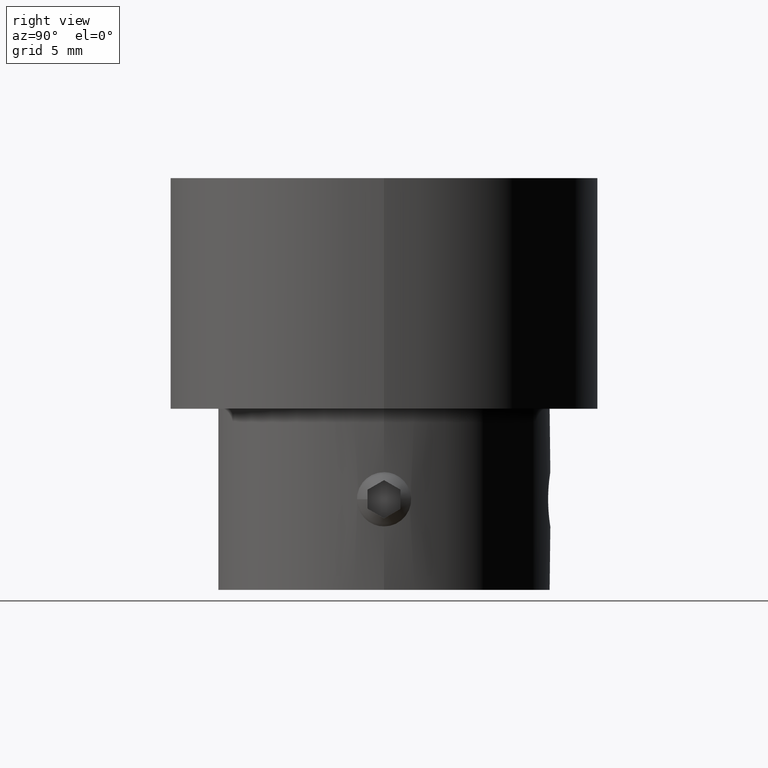
[diagram: clean part render]
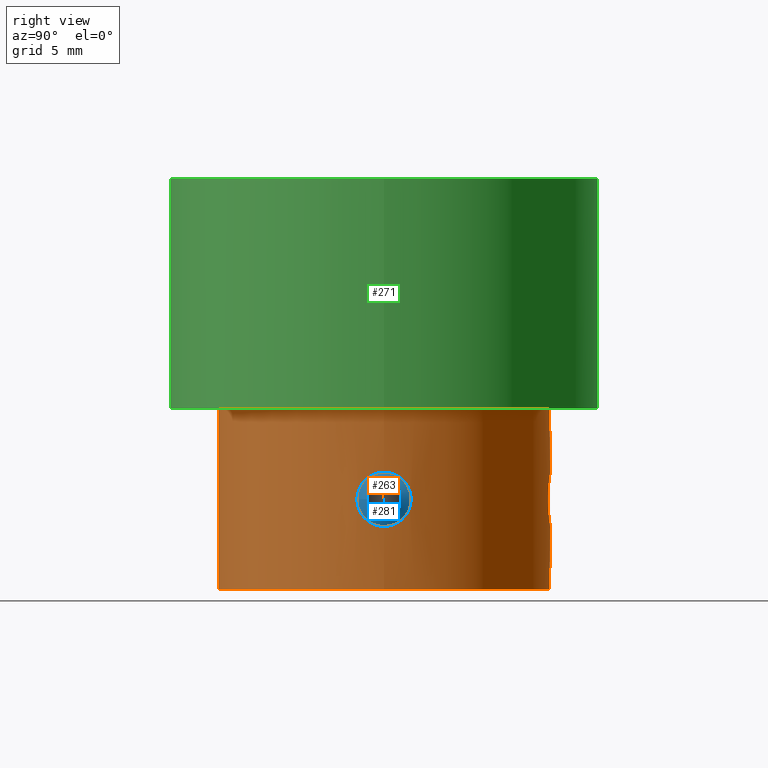
[diagram: same view with three faces highlighted in distinct colors, each labeled with its STEP entity id]
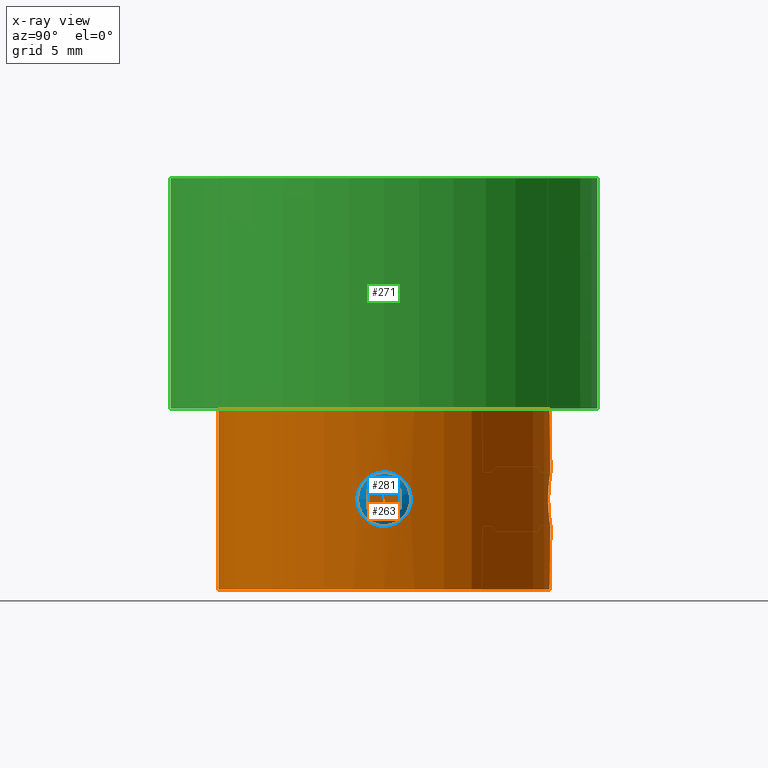
[diagram: x-ray of the same camera — body ghosted, the three highlighted faces saturated]
A machine part, right view with three faces highlighted in distinct colors.
The next image is the same camera in x-ray (body ghosted, the three faces saturated) — at least one of them is partly hidden behind the body in this view.
Their STEP definitions:

[orange] entity #263 — the highlighted cylindrical surface (bore or boss wall) has radius 10.1 mm, axis along (-0, 0, -1).
#263 = ADVANCED_FACE( '', ( #304, #305, #306, #307 ), #308, .T. );
#304 = FACE_BOUND( '', #396, .T. );
#305 = FACE_OUTER_BOUND( '', #397, .T. );
#306 = FACE_BOUND( '', #398, .T. );
#307 = FACE_OUTER_BOUND( '', #399, .T. );
#308 = CYLINDRICAL_SURFACE( '', #400, 10.1000000000000 );
#396 = EDGE_LOOP( '', ( #488 ) );
#397 = EDGE_LOOP( '', ( #489 ) );
#398 = EDGE_LOOP( '', ( #490 ) );
#399 = EDGE_LOOP( '', ( #491 ) );
#400 = AXIS2_PLACEMENT_3D( '', #492, #493, #494 );
#488 = ORIENTED_EDGE( '', *, *, #704, .F. );
#489 = ORIENTED_EDGE( '', *, *, #705, .T. );
#490 = ORIENTED_EDGE( '', *, *, #706, .F. );
#491 = ORIENTED_EDGE( '', *, *, #707, .T. );
#492 = CARTESIAN_POINT( '', ( 0.000000000000000, 0.000000000000000, -25.0000000000000 ) );
#493 = DIRECTION( '', ( -0.000000000000000, 0.000000000000000, -1.00000000000000 ) );
#494 = DIRECTION( '', ( 1.00000000000000, 0.000000000000000, 0.000000000000000 ) );
#704 = EDGE_CURVE( '', #762, #762, #763, .T. );
#705 = EDGE_CURVE( '', #764, #764, #765, .T. );
#706 = EDGE_CURVE( '', #766, #766, #767, .T. );
#707 = EDGE_CURVE( '', #768, #768, #769, .F. );
#762 = VERTEX_POINT( '', #862 );
#763 = B_SPLINE_CURVE_WITH_KNOTS( '', 3, ( #863, #864, #865, #866, #867, #868, #869, #870, #871, #872, #873, #874, #875, #876, #877, #878, #879, #880, #881, #882, #883, #884, #885, #886, #887, #888, #889, #890, #891, #892, #893, #894, #895, #896, #897, #898, #899, #900, #901, #902, #903, #904, #905, #906, #907, #908, #909, #910, #911, #912 ), .UNSPECIFIED., .T., .F., ( 2, 2, 2, 2, 2, 2, 2, 2, 2, 2, 2, 2, 2, 2, 2, 2, 2, 2, 2, 2, 2, 2, 2, 2, 2, 2, 2 ), ( -0.000645859018076156, 0.000000000000000, 0.000322929509038092, 0.000645859018076185, 0.000968788527114277, 0.00129171803615237, 0.00193757705422855, 0.00258343607230473, 0.00290636558134281, 0.00322929509038089, 0.00387515410845705, 0.00419808361749513, 0.00452101312653321, 0.00484394263557129, 0.00516687214460937, 0.00581273116268553, 0.00645859018076168, 0.00678151968979976, 0.00710444919883784, 0.00775030821691399, 0.00807323772595208, 0.00839616723499016, 0.00871909674402824, 0.00904202625306633, 0.00968788527114249, 0.0103337442892186, 0.0106566737982567 ), .UNSPECIFIED. );
#764 = VERTEX_POINT( '', #913 );
#765 = CIRCLE( '', #914, 10.1000000000000 );
#766 = VERTEX_POINT( '', #915 );
#767 = B_SPLINE_CURVE_WITH_KNOTS( '', 3, ( #916, #917, #918, #919, #920, #921, #922, #923, #924, #925, #926, #927, #928, #929, #930, #931, #932, #933, #934, #935, #936, #937, #938, #939, #940, #941, #942, #943, #944, #945, #946, #947, #948, #949, #950, #951, #952, #953, #954, #955, #956, #957, #958, #959, #960, #961, #962, #963, #964, #965 ), .UNSPECIFIED., .T., .F., ( 2, 2, 2, 2, 2, 2, 2, 2, 2, 2, 2, 2, 2, 2, 2, 2, 2, 2, 2, 2, 2, 2, 2, 2, 2, 2, 2 ), ( -0.000645859018076163, 0.000000000000000, 0.000322929509038091, 0.000645859018076182, 0.000968788527114273, 0.00129171803615236, 0.00193757705422854, 0.00258343607230472, 0.00290636558134280, 0.00322929509038088, 0.00387515410845704, 0.00419808361749511, 0.00452101312653319, 0.00484394263557127, 0.00516687214460935, 0.00581273116268550, 0.00645859018076165, 0.00678151968979973, 0.00710444919883781, 0.00775030821691397, 0.00807323772595206, 0.00839616723499015, 0.00871909674402823, 0.00904202625306632, 0.00968788527114248, 0.0103337442892186, 0.0106566737982567 ), .UNSPECIFIED. );
#768 = VERTEX_POINT( '', #966 );
#769 = CIRCLE( '', #967, 10.1000000000000 );
#862 = CARTESIAN_POINT( '', ( -0.197036897841014, 10.0980778597162, -17.8618069524963 ) );
#863 = CARTESIAN_POINT( '', ( -0.413835068599879, 10.0938476250500, -17.8878827798165 ) );
#864 = CARTESIAN_POINT( '', ( -0.0886378124615763, 10.1001929770492, -17.8487690388362 ) );
#865 = CARTESIAN_POINT( '', ( 0.0192339311944848, 10.1005524229589, -17.8466017716579 ) );
#866 = CARTESIAN_POINT( '', ( 0.233965220237952, 10.0978606382129, -17.8631261742843 ) );
#867 = CARTESIAN_POINT( '', ( 0.341997659381878, 10.0947465821039, -17.8822103931210 ) );
#868 = CARTESIAN_POINT( '', ( 0.550321856152164, 10.0855350284733, -17.9407208505885 ) );
#869 = CARTESIAN_POINT( '', ( 0.650466696647838, 10.0794937828834, -17.9797940305924 ) );
#870 = CARTESIAN_POINT( '', ( 0.842831018452398, 10.0652341113840, -18.0774076524861 ) );
#871 = CARTESIAN_POINT( '', ( 0.935255996854193, 10.0569630318336, -18.1364232056220 ) );
#872 = CARTESIAN_POINT( '', ( 1.18867549347761, 10.0312455549891, -18.3356407828866 ) );
#873 = CARTESIAN_POINT( '', ( 1.33246122812960, 10.0122860817558, -18.5034304259861 ) );
#874 = CARTESIAN_POINT( '', ( 1.54313626097009, 9.98198657519981, -18.8776381113869 ) );
#875 = CARTESIAN_POINT( '', ( 1.61222308290267, 9.97052775049790, -19.0880374650928 ) );
#876 = CARTESIAN_POINT( '', ( 1.65101553447083, 9.96415171643122, -19.4090780293942 ) );
#877 = CARTESIAN_POINT( '', ( 1.65341830753258, 9.96374822140631, -19.5191382265471 ) );
#878 = CARTESIAN_POINT( '', ( 1.63682396980571, 9.96648774700148, -19.7344475704048 ) );
#879 = CARTESIAN_POINT( '', ( 1.61812751715181, 9.96958060271725, -19.8404352440997 ) );
#880 = CARTESIAN_POINT( '', ( 1.53053864744746, 9.98353382685859, -20.1533626232239 ) );
#881 = CARTESIAN_POINT( '', ( 1.43180372573795, 9.99891251680043, -20.3483187490491 ) );
#882 = CARTESIAN_POINT( '', ( 1.23049529181897, 10.0249917552948, -20.6046189338716 ) );
#883 = CARTESIAN_POINT( '', ( 1.15609056409460, 10.0339508820240, -20.6821527154976 ) );
#884 = CARTESIAN_POINT( '', ( 0.993122200324899, 10.0513891572499, -20.8220206996748 ) );
#885 = CARTESIAN_POINT( '', ( 0.903444976226864, 10.0599546800184, -20.8848947777687 ) );
#886 = CARTESIAN_POINT( '', ( 0.715361753056328, 10.0750761064797, -20.9907729313429 ) );
#887 = CARTESIAN_POINT( '', ( 0.617063174994442, 10.0816557761441, -21.0340759623899 ) );
#888 = CARTESIAN_POINT( '', ( 0.411902014975233, 10.0921200389538, -21.1014033690411 ) );
#889 = CARTESIAN_POINT( '', ( 0.304591375313770, 10.0959727742497, -21.1252164095303 ) );
#890 = CARTESIAN_POINT( '', ( -0.0162513344940196, 10.1022524493972, -21.1639269902901 ) );
#891 = CARTESIAN_POINT( '', ( -0.237474993378689, 10.0993372389121, -21.1469337287937 ) );
#892 = CARTESIAN_POINT( '', ( -0.651835611387458, 10.0810771931121, -21.0309785809232 ) );
#893 = CARTESIAN_POINT( '', ( -0.849038516058288, 10.0656890116373, -20.9310623563583 ) );
#894 = CARTESIAN_POINT( '', ( -1.10300961944929, 10.0399507070299, -20.7318466815259 ) );
#895 = CARTESIAN_POINT( '', ( -1.18224520243821, 10.0308163388895, -20.6560110556135 ) );
#896 = CARTESIAN_POINT( '', ( -1.32229639789662, 10.0133167521721, -20.4927726403857 ) );
#897 = CARTESIAN_POINT( '', ( -1.38396638337660, 10.0048749592815, -20.4049040554422 ) );
#898 = CARTESIAN_POINT( '', ( -1.54348829138388, 9.98194307232116, -20.1220941197680 ) );
#899 = CARTESIAN_POINT( '', ( -1.61184931508604, 9.97058906434993, -19.9146492646963 ) );
#900 = CARTESIAN_POINT( '', ( -1.65113597428166, 9.96413198028822, -19.5901279715021 ) );
#901 = CARTESIAN_POINT( '', ( -1.65341792176747, 9.96374817255838, -19.4823450888941 ) );
#902 = CARTESIAN_POINT( '', ( -1.63708962613839, 9.96644400105536, -19.2675347856171 ) );
#903 = CARTESIAN_POINT( '', ( -1.61806174838215, 9.96959108364420, -19.1593286638432 ) );
#904 = CARTESIAN_POINT( '', ( -1.55979821926214, 9.97887266738293, -18.9511737105030 ) );
#905 = CARTESIAN_POINT( '', ( -1.52083435235048, 9.98496336966717, -18.8509842745074 ) );
#906 = CARTESIAN_POINT( '', ( -1.42328460828723, 9.99933455509400, -18.6583234213555 ) );
#907 = CARTESIAN_POINT( '', ( -1.36441042950201, 10.0076397406180, -18.5659664552719 ) );
#908 = CARTESIAN_POINT( '', ( -1.16552208469462, 10.0334158820717, -18.3124831785049 ) );
#909 = CARTESIAN_POINT( '', ( -0.997839996239105, 10.0523393757375, -18.1684832649214 ) );
#910 = CARTESIAN_POINT( '', ( -0.623756233136248, 10.0824669473657, -17.9574211088205 ) );
#911 = CARTESIAN_POINT( '', ( -0.413835068599879, 10.0938476250500, -17.8878827798165 ) );
#912 = CARTESIAN_POINT( '', ( -0.0886378124615763, 10.1001929770492, -17.8487690388362 ) );
#913 = CARTESIAN_POINT( '', ( 10.1000000000000, 0.000000000000000, -25.0000000000000 ) );
#914 = AXIS2_PLACEMENT_3D( '', #1250, #1251, #1252 );
#915 = CARTESIAN_POINT( '', ( 10.0980778597162, 0.197036897841014, -17.8618069524963 ) );
#916 = CARTESIAN_POINT( '', ( 10.0938476250500, 0.413835068599882, -17.8878827798165 ) );
#917 = CARTESIAN_POINT( '', ( 10.1001929770492, 0.0886378124615769, -17.8487690388362 ) );
#918 = CARTESIAN_POINT( '', ( 10.1005524229589, -0.0192339311944841, -17.8466017716579 ) );
#919 = CARTESIAN_POINT( '', ( 10.0978606382129, -0.233965220237951, -17.8631261742843 ) );
#920 = CARTESIAN_POINT( '', ( 10.0947465821039, -0.341997659381876, -17.8822103931210 ) );
#921 = CARTESIAN_POINT( '', ( 10.0855350284733, -0.550321856152162, -17.9407208505885 ) );
#922 = CARTESIAN_POINT( '', ( 10.0794937828834, -0.650466696647837, -17.9797940305923 ) );
#923 = CARTESIAN_POINT( '', ( 10.0652341113840, -0.842831018452397, -18.0774076524861 ) );
#924 = CARTESIAN_POINT( '', ( 10.0569630318337, -0.935255996854192, -18.1364232056220 ) );
#925 = CARTESIAN_POINT( '', ( 10.0312455549890, -1.18867549347761, -18.3356407828866 ) );
#926 = CARTESIAN_POINT( '', ( 10.0122860817558, -1.33246122812961, -18.5034304259861 ) );
#927 = CARTESIAN_POINT( '', ( 9.98198657519981, -1.54313626097009, -18.8776381113869 ) );
#928 = CARTESIAN_POINT( '', ( 9.97052775049789, -1.61222308290267, -19.0880374650928 ) );
#929 = CARTESIAN_POINT( '', ( 9.96415171643122, -1.65101553447083, -19.4090780293942 ) );
#930 = CARTESIAN_POINT( '', ( 9.96374822140631, -1.65341830753258, -19.5191382265471 ) );
#931 = CARTESIAN_POINT( '', ( 9.96648774700148, -1.63682396980571, -19.7344475704048 ) );
#932 = CARTESIAN_POINT( '', ( 9.96958060271725, -1.61812751715181, -19.8404352440997 ) );
#933 = CARTESIAN_POINT( '', ( 9.98353382685859, -1.53053864744745, -20.1533626232239 ) );
#934 = CARTESIAN_POINT( '', ( 9.99891251680044, -1.43180372573795, -20.3483187490491 ) );
#935 = CARTESIAN_POINT( '', ( 10.0249917552948, -1.23049529181897, -20.6046189338716 ) );
#936 = CARTESIAN_POINT( '', ( 10.0339508820240, -1.15609056409459, -20.6821527154976 ) );
#937 = CARTESIAN_POINT( '', ( 10.0513891572499, -0.993122200324897, -20.8220206996748 ) );
#938 = CARTESIAN_POINT( '', ( 10.0599546800184, -0.903444976226863, -20.8848947777687 ) );
#939 = CARTESIAN_POINT( '', ( 10.0750761064797, -0.715361753056326, -20.9907729313429 ) );
#940 = CARTESIAN_POINT( '', ( 10.0816557761441, -0.617063174994440, -21.0340759623899 ) );
#941 = CARTESIAN_POINT( '', ( 10.0921200389538, -0.411902014975231, -21.1014033690411 ) );
#942 = CARTESIAN_POINT( '', ( 10.0959727742497, -0.304591375313768, -21.1252164095303 ) );
#943 = CARTESIAN_POINT( '', ( 10.1022524493972, 0.0162513344940226, -21.1639269902901 ) );
#944 = CARTESIAN_POINT( '', ( 10.0993372389121, 0.237474993378691, -21.1469337287937 ) );
#945 = CARTESIAN_POINT( '', ( 10.0810771931121, 0.651835611387459, -21.0309785809232 ) );
#946 = CARTESIAN_POINT( '', ( 10.0656890116374, 0.849038516058293, -20.9310623563583 ) );
#947 = CARTESIAN_POINT( '', ( 10.0399507070298, 1.10300961944930, -20.7318466815259 ) );
#948 = CARTESIAN_POINT( '', ( 10.0308163388895, 1.18224520243821, -20.6560110556135 ) );
#949 = CARTESIAN_POINT( '', ( 10.0133167521721, 1.32229639789663, -20.4927726403857 ) );
#950 = CARTESIAN_POINT( '', ( 10.0048749592815, 1.38396638337660, -20.4049040554422 ) );
#951 = CARTESIAN_POINT( '', ( 9.98194307232116, 1.54348829138388, -20.1220941197680 ) );
#952 = CARTESIAN_POINT( '', ( 9.97058906434994, 1.61184931508604, -19.9146492646963 ) );
#953 = CARTESIAN_POINT( '', ( 9.96413198028822, 1.65113597428166, -19.5901279715021 ) );
#954 = CARTESIAN_POINT( '', ( 9.96374817255838, 1.65341792176747, -19.4823450888941 ) );
#955 = CARTESIAN_POINT( '', ( 9.96644400105536, 1.63708962613839, -19.2675347856171 ) );
#956 = CARTESIAN_POINT( '', ( 9.96959108364421, 1.61806174838215, -19.1593286638432 ) );
#957 = CARTESIAN_POINT( '', ( 9.97887266738294, 1.55979821926214, -18.9511737105030 ) );
#958 = CARTESIAN_POINT( '', ( 9.98496336966717, 1.52083435235048, -18.8509842745074 ) );
#959 = CARTESIAN_POINT( '', ( 9.99933455509401, 1.42328460828723, -18.6583234213555 ) );
#960 = CARTESIAN_POINT( '', ( 10.0076397406180, 1.36441042950201, -18.5659664552719 ) );
#961 = CARTESIAN_POINT( '', ( 10.0334158820717, 1.16552208469462, -18.3124831785049 ) );
#962 = CARTESIAN_POINT( '', ( 10.0523393757375, 0.997839996239105, -18.1684832649214 ) );
#963 = CARTESIAN_POINT( '', ( 10.0824669473657, 0.623756233136249, -17.9574211088205 ) );
#964 = CARTESIAN_POINT( '', ( 10.0938476250500, 0.413835068599882, -17.8878827798165 ) );
#965 = CARTESIAN_POINT( '', ( 10.1001929770492, 0.0886378124615769, -17.8487690388362 ) );
#966 = CARTESIAN_POINT( '', ( 10.1000000000000, 0.000000000000000, -14.0000000000000 ) );
#967 = AXIS2_PLACEMENT_3D( '', #1253, #1254, #1255 );
#1250 = CARTESIAN_POINT( '', ( 0.000000000000000, 0.000000000000000, -25.0000000000000 ) );
#1251 = DIRECTION( '', ( 0.000000000000000, 0.000000000000000, 1.00000000000000 ) );
#1252 = DIRECTION( '', ( 1.00000000000000, 0.000000000000000, -0.000000000000000 ) );
#1253 = CARTESIAN_POINT( '', ( 0.000000000000000, 0.000000000000000, -14.0000000000000 ) );
#1254 = DIRECTION( '', ( 0.000000000000000, 0.000000000000000, 1.00000000000000 ) );
#1255 = DIRECTION( '', ( 1.00000000000000, 0.000000000000000, -0.000000000000000 ) );

[blue] entity #281 — the highlighted conical surface has half-angle 63.435 deg.
#281 = ADVANCED_FACE( '', ( #344, #345 ), #346, .T. );
#344 = FACE_OUTER_BOUND( '', #436, .T. );
#345 = FACE_BOUND( '', #437, .T. );
#346 = CONICAL_SURFACE( '', #438, 2.00000000000000, 1.10714871779409 );
#436 = EDGE_LOOP( '', ( #552 ) );
#437 = EDGE_LOOP( '', ( #553, #554, #555, #556, #557, #558 ) );
#438 = AXIS2_PLACEMENT_3D( '', #559, #560, #561 );
#552 = ORIENTED_EDGE( '', *, *, #718, .F. );
#553 = ORIENTED_EDGE( '', *, *, #719, .T. );
#554 = ORIENTED_EDGE( '', *, *, #720, .T. );
#555 = ORIENTED_EDGE( '', *, *, #721, .T. );
#556 = ORIENTED_EDGE( '', *, *, #722, .T. );
#557 = ORIENTED_EDGE( '', *, *, #723, .T. );
#558 = ORIENTED_EDGE( '', *, *, #724, .T. );
#559 = CARTESIAN_POINT( '', ( 9.46205955850783, 0.000000000000000, -19.5000000000000 ) );
#560 = DIRECTION( '', ( -1.00000000000000, -0.000000000000000, -0.000000000000000 ) );
#561 = DIRECTION( '', ( 0.000000000000000, -1.00000000000000, 0.000000000000000 ) );
#718 = EDGE_CURVE( '', #790, #790, #791, .T. );
#719 = EDGE_CURVE( '', #792, #793, #794, .T. );
#720 = EDGE_CURVE( '', #793, #795, #796, .T. );
#721 = EDGE_CURVE( '', #795, #797, #798, .T. );
#722 = EDGE_CURVE( '', #797, #799, #800, .F. );
#723 = EDGE_CURVE( '', #799, #801, #802, .T. );
#724 = EDGE_CURVE( '', #801, #792, #803, .T. );
#790 = VERTEX_POINT( '', #1094 );
#791 = CIRCLE( '', #1095, 2.00000000000000 );
#792 = VERTEX_POINT( '', #1096 );
#793 = VERTEX_POINT( '', #1097 );
#794 = B_SPLINE_CURVE_WITH_KNOTS( '', 3, ( #1098, #1099, #1100, #1101, #1102, #1103 ), .UNSPECIFIED., .F., .F., ( 4, 2, 4 ), ( 0.00103458309332885, 0.00161823594737898, 0.00220188880142910 ), .UNSPECIFIED. );
#795 = VERTEX_POINT( '', #1104 );
#796 = B_SPLINE_CURVE_WITH_KNOTS( '', 3, ( #1105, #1106, #1107, #1108, #1109, #1110 ), .UNSPECIFIED., .F., .F., ( 4, 2, 4 ), ( 2.34956865817659E-007, 0.000579233426840285, 0.00115823189681475 ), .UNSPECIFIED. );
#797 = VERTEX_POINT( '', #1111 );
#798 = B_SPLINE_CURVE_WITH_KNOTS( '', 3, ( #1112, #1113, #1114, #1115, #1116, #1117 ), .UNSPECIFIED., .F., .F., ( 4, 2, 4 ), ( 2.34956865817690E-007, 0.000579233426840286, 0.00115823189681475 ), .UNSPECIFIED. );
#799 = VERTEX_POINT( '', #1118 );
#800 = B_SPLINE_CURVE_WITH_KNOTS( '', 3, ( #1119, #1120, #1121, #1122, #1123, #1124 ), .UNSPECIFIED., .F., .F., ( 4, 2, 4 ), ( 0.00103458309332885, 0.00161823594737898, 0.00220188880142910 ), .UNSPECIFIED. );
#801 = VERTEX_POINT( '', #1125 );
#802 = B_SPLINE_CURVE_WITH_KNOTS( '', 3, ( #1126, #1127, #1128, #1129, #1130, #1131 ), .UNSPECIFIED., .F., .F., ( 4, 2, 4 ), ( 2.34956865817659E-007, 0.000579233426840285, 0.00115823189681475 ), .UNSPECIFIED. );
#803 = B_SPLINE_CURVE_WITH_KNOTS( '', 3, ( #1132, #1133, #1134, #1135, #1136, #1137 ), .UNSPECIFIED., .F., .F., ( 4, 2, 4 ), ( 2.34956865817718E-007, 0.000579233426840285, 0.00115823189681475 ), .UNSPECIFIED. );
#1094 = CARTESIAN_POINT( '', ( 9.46205955850783, -2.00000000000000, -19.5000000000000 ) );
#1095 = AXIS2_PLACEMENT_3D( '', #1280, #1281, #1282 );
#1096 = CARTESIAN_POINT( '', ( 9.88470928931821, -1.00000000000000, -20.0773502691896 ) );
#1097 = CARTESIAN_POINT( '', ( 9.88470928931821, -1.00000000000000, -18.9226497308104 ) );
#1098 = CARTESIAN_POINT( '', ( 9.88470928931821, -1.00000000000000, -20.0773502691896 ) );
#1099 = CARTESIAN_POINT( '', ( 9.93205678895494, -1.00000000000000, -19.8879602706427 ) );
#1100 = CARTESIAN_POINT( '', ( 9.96203361477331, -1.00000000000000, -19.6938974989258 ) );
#1101 = CARTESIAN_POINT( '', ( 9.96208546638729, -1.00000000000000, -19.3066380760690 ) );
#1102 = CARTESIAN_POINT( '', ( 9.93166433104529, -1.00000000000000, -19.1104698977178 ) );
#1103 = CARTESIAN_POINT( '', ( 9.88470928931842, -1.00000000000000, -18.9226497308103 ) );
#1104 = CARTESIAN_POINT( '', ( 9.88470928931821, 0.000000000000000, -18.3452994616207 ) );
#1105 = CARTESIAN_POINT( '', ( 9.88470928931821, -0.999999999999999, -18.9226497308104 ) );
#1106 = CARTESIAN_POINT( '', ( 9.93213444125038, -0.835714454593607, -18.8277994269460 ) );
#1107 = CARTESIAN_POINT( '', ( 9.96178597336774, -0.670138468625594, -18.7322040868761 ) );
#1108 = CARTESIAN_POINT( '', ( 9.96232920907831, -0.334720282664987, -18.5385503069206 ) );
#1109 = CARTESIAN_POINT( '', ( 9.93231574027657, -0.164913583655278, -18.4405123635371 ) );
#1110 = CARTESIAN_POINT( '', ( 9.88470928931836, 2.38052521438091E-014, -18.3452994616207 ) );
#1111 = CARTESIAN_POINT( '', ( 9.88470928931821, 1.00000000000000, -18.9226497308104 ) );
#1112 = CARTESIAN_POINT( '', ( 9.88470928931821, 8.08713489226736E-016, -18.3452994616207 ) );
#1113 = CARTESIAN_POINT( '', ( 9.93213444125038, 0.164285545406393, -18.4401497654851 ) );
#1114 = CARTESIAN_POINT( '', ( 9.96178597336774, 0.329861531374406, -18.5357451055551 ) );
#1115 = CARTESIAN_POINT( '', ( 9.96232920907831, 0.665279717335012, -18.7293988855105 ) );
#1116 = CARTESIAN_POINT( '', ( 9.93231574027657, 0.835086416344722, -18.8274368288940 ) );
#1117 = CARTESIAN_POINT( '', ( 9.88470928931836, 1.00000000000002, -18.9226497308104 ) );
#1118 = CARTESIAN_POINT( '', ( 9.88470928931821, 1.00000000000000, -20.0773502691896 ) );
#1119 = CARTESIAN_POINT( '', ( 9.88470928931821, 1.00000000000000, -20.0773502691896 ) );
#1120 = CARTESIAN_POINT( '', ( 9.93205678895494, 1.00000000000000, -19.8879602706427 ) );
#1121 = CARTESIAN_POINT( '', ( 9.96203361477331, 1.00000000000000, -19.6938974989258 ) );
#1122 = CARTESIAN_POINT( '', ( 9.96208546638729, 1.00000000000000, -19.3066380760690 ) );
#1123 = CARTESIAN_POINT( '', ( 9.93166433104529, 1.00000000000000, -19.1104698977178 ) );
#1124 = CARTESIAN_POINT( '', ( 9.88470928931842, 1.00000000000000, -18.9226497308103 ) );
#1125 = CARTESIAN_POINT( '', ( 9.88470928931821, -2.59503007864134E-016, -20.6547005383793 ) );
#1126 = CARTESIAN_POINT( '', ( 9.88470928931821, 0.999999999999999, -20.0773502691896 ) );
#1127 = CARTESIAN_POINT( '', ( 9.93213444125038, 0.835714454593607, -20.1722005730540 ) );
#1128 = CARTESIAN_POINT( '', ( 9.96178597336774, 0.670138468625594, -20.2677959131239 ) );
#1129 = CARTESIAN_POINT( '', ( 9.96232920907831, 0.334720282664987, -20.4614496930794 ) );
#1130 = CARTESIAN_POINT( '', ( 9.93231574027657, 0.164913583655278, -20.5594876364628 ) );
#1131 = CARTESIAN_POINT( '', ( 9.88470928931836, -2.40785769166271E-014, -20.6547005383793 ) );
#1132 = CARTESIAN_POINT( '', ( 9.88470928931821, -1.01858289211704E-015, -20.6547005383793 ) );
#1133 = CARTESIAN_POINT( '', ( 9.93213444125038, -0.164285545406393, -20.5598502345149 ) );
#1134 = CARTESIAN_POINT( '', ( 9.96178597336774, -0.329861531374406, -20.4642548944449 ) );
#1135 = CARTESIAN_POINT( '', ( 9.96232920907831, -0.665279717335012, -20.2706011144895 ) );
#1136 = CARTESIAN_POINT( '', ( 9.93231574027657, -0.835086416344722, -20.1725631711060 ) );
#1137 = CARTESIAN_POINT( '', ( 9.88470928931836, -1.00000000000002, -20.0773502691896 ) );
#1280 = CARTESIAN_POINT( '', ( 9.46205955850783, 0.000000000000000, -19.5000000000000 ) );
#1281 = DIRECTION( '', ( -1.00000000000000, -0.000000000000000, 0.000000000000000 ) );
#1282 = DIRECTION( '', ( 0.000000000000000, -1.00000000000000, 0.000000000000000 ) );

[green] entity #271 — the highlighted cylindrical surface (bore or boss wall) has radius 13 mm, axis along (-0, 0, -1).
#271 = ADVANCED_FACE( '', ( #332, #333 ), #334, .T. );
#332 = FACE_OUTER_BOUND( '', #424, .T. );
#333 = FACE_OUTER_BOUND( '', #425, .T. );
#334 = CYLINDRICAL_SURFACE( '', #426, 13.0000000000000 );
#424 = EDGE_LOOP( '', ( #532 ) );
#425 = EDGE_LOOP( '', ( #533 ) );
#426 = AXIS2_PLACEMENT_3D( '', #534, #535, #536 );
#532 = ORIENTED_EDGE( '', *, *, #714, .T. );
#533 = ORIENTED_EDGE( '', *, *, #715, .F. );
#534 = CARTESIAN_POINT( '', ( 0.000000000000000, 0.000000000000000, -14.0000000000000 ) );
#535 = DIRECTION( '', ( -0.000000000000000, 0.000000000000000, -1.00000000000000 ) );
#536 = DIRECTION( '', ( 1.00000000000000, 0.000000000000000, 0.000000000000000 ) );
#714 = EDGE_CURVE( '', #782, #782, #783, .T. );
#715 = EDGE_CURVE( '', #784, #784, #785, .T. );
#782 = VERTEX_POINT( '', #1086 );
#783 = CIRCLE( '', #1087, 13.0000000000000 );
#784 = VERTEX_POINT( '', #1088 );
#785 = CIRCLE( '', #1089, 13.0000000000000 );
#1086 = CARTESIAN_POINT( '', ( 13.0000000000000, 0.000000000000000, -14.0000000000000 ) );
#1087 = AXIS2_PLACEMENT_3D( '', #1268, #1269, #1270 );
#1088 = CARTESIAN_POINT( '', ( 13.0000000000000, 0.000000000000000, 0.000000000000000 ) );
#1089 = AXIS2_PLACEMENT_3D( '', #1271, #1272, #1273 );
#1268 = CARTESIAN_POINT( '', ( 0.000000000000000, 0.000000000000000, -14.0000000000000 ) );
#1269 = DIRECTION( '', ( 0.000000000000000, 0.000000000000000, 1.00000000000000 ) );
#1270 = DIRECTION( '', ( 1.00000000000000, 0.000000000000000, 0.000000000000000 ) );
#1271 = CARTESIAN_POINT( '', ( 0.000000000000000, 0.000000000000000, 0.000000000000000 ) );
#1272 = DIRECTION( '', ( 0.000000000000000, 0.000000000000000, 1.00000000000000 ) );
#1273 = DIRECTION( '', ( 1.00000000000000, 0.000000000000000, 0.000000000000000 ) );